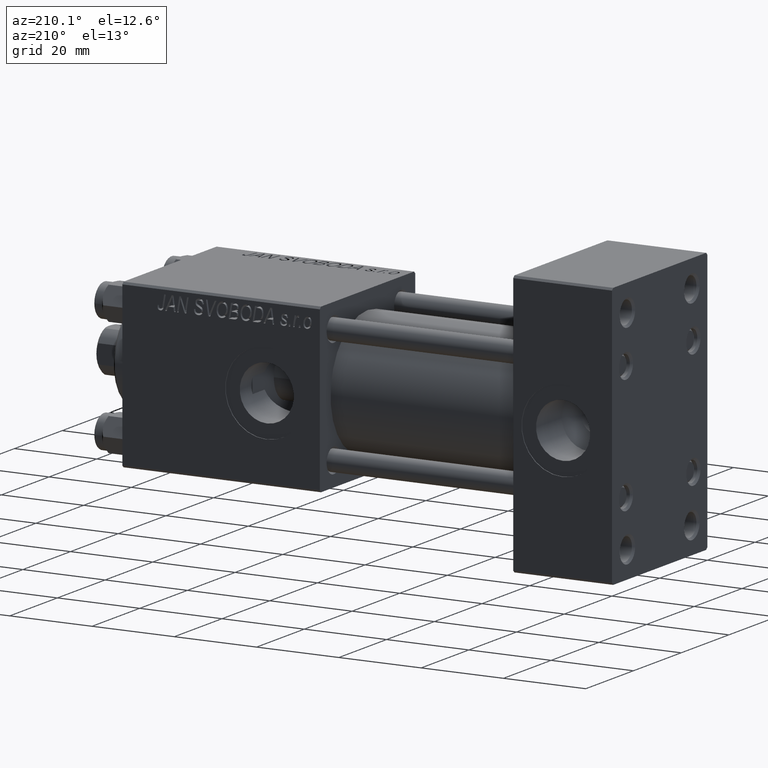
[diagram: clean part render]
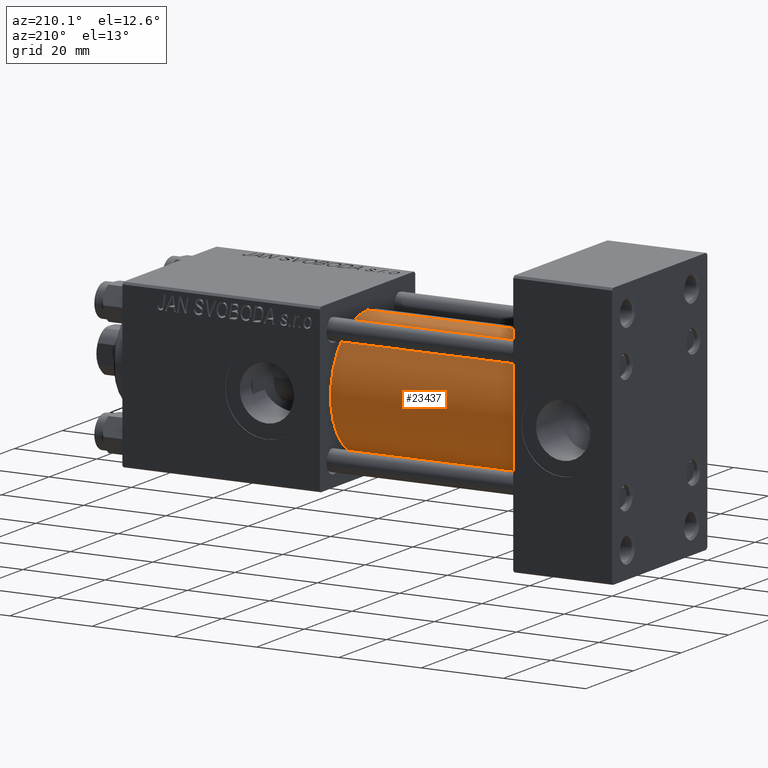
[diagram: same view with one face highlighted and labeled with its STEP entity id]
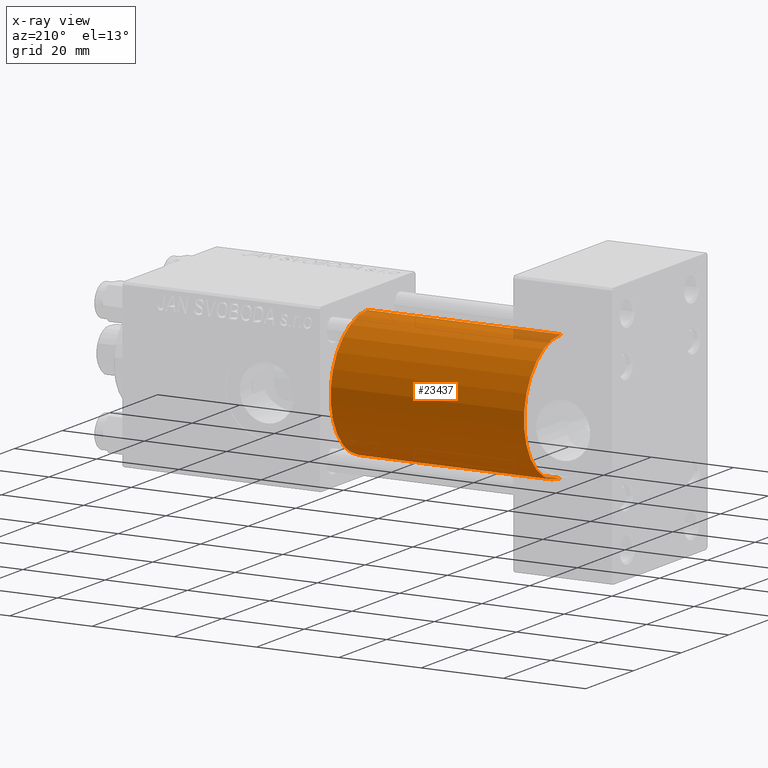
[diagram: x-ray of the same camera — body ghosted, the highlighted face saturated]
A machine part, auxiliary view. The second image highlights one B-rep face of the part: STEP entity #23437.
The next image is the same camera in x-ray: the body ghosted, the highlighted face saturated — about 2% of this face is hidden behind the body in this view.
In plain terms, the highlighted cylindrical surface (partial cylindrical patch) has radius 15.5 mm, axis along (-1, -0, -0).
Its self-contained STEP definition (entity closure, byte-faithful):
#1661 = VERTEX_POINT ( 'NONE', #7974 ) ;
#2386 = DIRECTION ( 'NONE',  ( 1.000000000000000000, 0.000000000000000000, 0.000000000000000000 ) ) ;
#2388 = VERTEX_POINT ( 'NONE', #25445 ) ;
#2579 = EDGE_CURVE ( 'NONE', #2388, #1661, #49407, .T. ) ;
#3523 = LINE ( 'NONE', #42160, #8510 ) ;
#3941 = ORIENTED_EDGE ( 'NONE', *, *, #48897, .F. ) ;
#4468 = EDGE_CURVE ( 'NONE', #1661, #46647, #14837, .T. ) ;
#6176 = CARTESIAN_POINT ( 'NONE',  ( 24.00000000000000000, -2.602085213965210642E-15, 0.000000000000000000 ) ) ;
#7974 = CARTESIAN_POINT ( 'NONE',  ( 24.00000000000000000, -7.038826752868131828E-16, -15.50000000000000000 ) ) ;
#8217 = EDGE_LOOP ( 'NONE', ( #26749, #49549, #17919, #3941 ) ) ;
#8510 = VECTOR ( 'NONE', #19176, 1000.000000000000000 ) ;
#9094 = CIRCLE ( 'NONE', #37316, 15.50000000000000000 ) ;
#11043 = CARTESIAN_POINT ( 'NONE',  ( 71.00000000000001421, -7.038826752868131828E-16, -15.50000000000000000 ) ) ;
#12673 = CARTESIAN_POINT ( 'NONE',  ( 71.00000000000001421, -2.602085213965210642E-15, 0.000000000000000000 ) ) ;
#13201 = AXIS2_PLACEMENT_3D ( 'NONE', #6176, #2386, #25603 ) ;
#14005 = CARTESIAN_POINT ( 'NONE',  ( 24.00000000000000000, -2.602085213965210642E-15, 15.50000000000000000 ) ) ;
#14837 = CIRCLE ( 'NONE', #13201, 15.50000000000000000 ) ;
#17885 = DIRECTION ( 'NONE',  ( -1.000000000000000000, -0.000000000000000000, -0.000000000000000000 ) ) ;
#17919 = ORIENTED_EDGE ( 'NONE', *, *, #4468, .T. ) ;
#19176 = DIRECTION ( 'NONE',  ( -1.000000000000000000, -0.000000000000000000, -0.000000000000000000 ) ) ;
#19354 = AXIS2_PLACEMENT_3D ( 'NONE', #26572, #30361, #23520 ) ;
#23437 = ADVANCED_FACE ( 'NONE', ( #34880 ), #49547, .T. ) ;
#23520 = DIRECTION ( 'NONE',  ( 0.000000000000000000, 0.000000000000000000, 1.000000000000000000 ) ) ;
#25445 = CARTESIAN_POINT ( 'NONE',  ( 71.00000000000001421, -7.038826752868131828E-16, -15.50000000000000000 ) ) ;
#25603 = DIRECTION ( 'NONE',  ( 0.000000000000000000, 0.000000000000000000, 1.000000000000000000 ) ) ;
#26572 = CARTESIAN_POINT ( 'NONE',  ( 71.00000000000001421, -2.602085213965210642E-15, 0.000000000000000000 ) ) ;
#26749 = ORIENTED_EDGE ( 'NONE', *, *, #38883, .F. ) ;
#30361 = DIRECTION ( 'NONE',  ( -1.000000000000000000, -0.000000000000000000, -0.000000000000000000 ) ) ;
#32465 = VECTOR ( 'NONE', #17885, 1000.000000000000000 ) ;
#34880 = FACE_OUTER_BOUND ( 'NONE', #8217, .T. ) ;
#34882 = DIRECTION ( 'NONE',  ( 1.000000000000000000, 0.000000000000000000, 0.000000000000000000 ) ) ;
#35086 = VERTEX_POINT ( 'NONE', #38339 ) ;
#37316 = AXIS2_PLACEMENT_3D ( 'NONE', #12673, #34882, #39439 ) ;
#38339 = CARTESIAN_POINT ( 'NONE',  ( 71.00000000000001421, -2.602085213965210642E-15, 15.50000000000000000 ) ) ;
#38883 = EDGE_CURVE ( 'NONE', #2388, #35086, #9094, .T. ) ;
#39439 = DIRECTION ( 'NONE',  ( 0.000000000000000000, 0.000000000000000000, -1.000000000000000000 ) ) ;
#42160 = CARTESIAN_POINT ( 'NONE',  ( 71.00000000000001421, -2.602085213965210642E-15, 15.50000000000000000 ) ) ;
#46647 = VERTEX_POINT ( 'NONE', #14005 ) ;
#48897 = EDGE_CURVE ( 'NONE', #35086, #46647, #3523, .T. ) ;
#49407 = LINE ( 'NONE', #11043, #32465 ) ;
#49547 = CYLINDRICAL_SURFACE ( 'NONE', #19354, 15.50000000000000000 ) ;
#49549 = ORIENTED_EDGE ( 'NONE', *, *, #2579, .T. ) ;